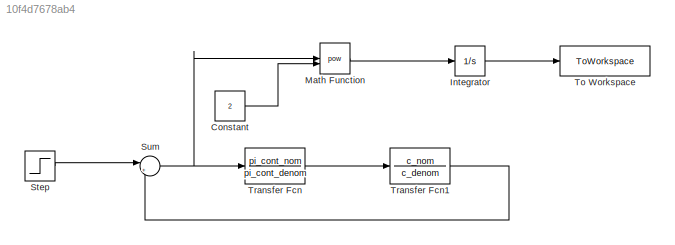
MODEL slx_10f4d7678ab4
KIND model
CONFIG AbsTol = auto
CONFIG EnableMultiTasking = off
CONFIG FixedStep = 0.0001
CONFIG MaxStep = auto
CONFIG MinStep = auto
CONFIG RelTol = 1e-3
CONFIG SampleTimeConstraint = Unconstrained
CONFIG SolverName = FixedStepAuto
CONFIG StartTime = 0.0
CONFIG StopTime = 200
BLOCK [Constant] Constant
  Value = 2
BLOCK [Integrator] Integrator
BLOCK [Math] Math Function
  Operator = pow
BLOCK [Step] Step
  After = final_value
  Before = init_value
  SampleTime = 0
  Time = time_step
BLOCK [Sum] Sum
  Inputs = |+-
BLOCK [ToWorkspace] To Workspace
  FixptAsFi = on
  MaxDataPoints = inf
  SampleTime = -1
  SaveFormat = Timeseries
  VariableName = q
BLOCK [TransferFcn] Transfer Fcn
  Denominator = pi_cont_denom
  Numerator = pi_cont_nom
BLOCK [TransferFcn] Transfer Fcn1
  Denominator = c_denom
  Numerator = c_nom
LINE Constant:1 -> Math Function:2
LINE Integrator:1 -> To Workspace:1
LINE Math Function:1 -> Integrator:1
LINE Step:1 -> Sum:1
NET Sum:1 -> Math Function:1, Transfer Fcn:1
LINE Transfer Fcn1:1 -> Sum:2
LINE Transfer Fcn:1 -> Transfer Fcn1:1
note: NET lines group one-source signal fan-out (src -> all destinations, sorted); 1:1 wires keep LINE
